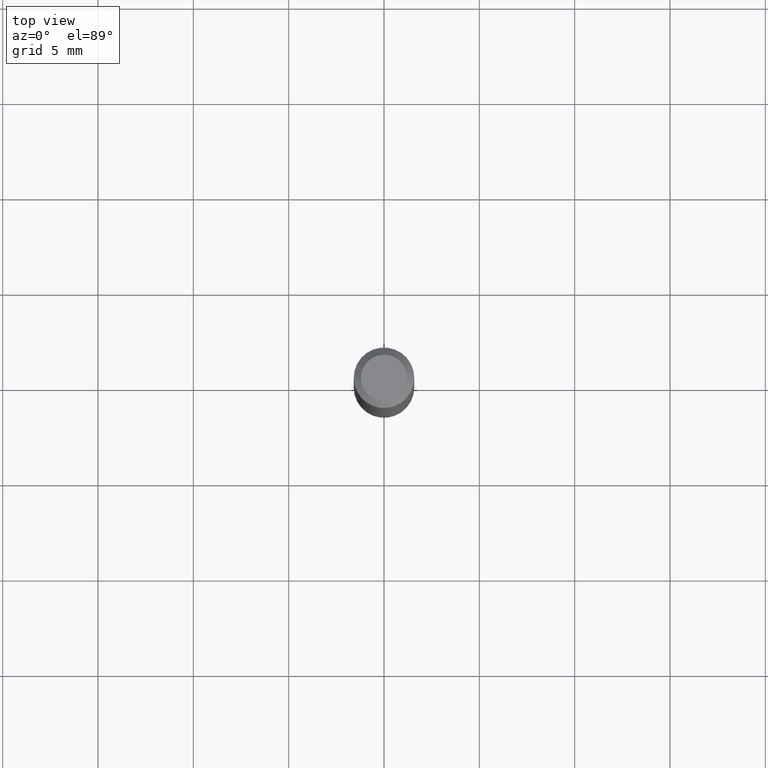
[diagram: clean part render]
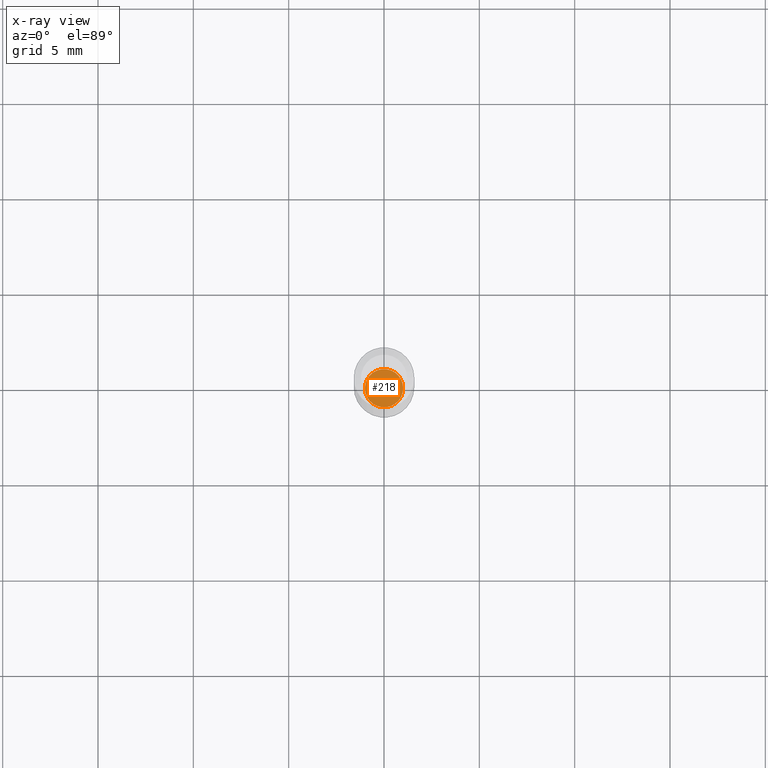
[diagram: x-ray — body ghosted, one internal face saturated and labeled with its STEP entity id]
A machine part, top view, then the same camera in x-ray: the body is ghosted and one INTERNAL B-rep face — a face not visible from any outside direction — is saturated and labeled: STEP entity #218.
In plain terms, the highlighted planar face has unit normal (-0, 0, 1).
Its self-contained STEP definition (entity closure, byte-faithful):
#70 = DIRECTION ( 'NONE',  ( 1.000000000000000000, -6.982962677686265922E-15, 4.876176775795935793E-29 ) ) ;
#82 = ORIENTED_EDGE ( 'NONE', *, *, #441, .F. ) ;
#104 = CARTESIAN_POINT ( 'NONE',  ( 3.081290695793272291E-29, -4.399266486942364120E-15, -1.260000000000000231 ) ) ;
#108 = CIRCLE ( 'NONE', #403, 0.03950000000000000039 ) ;
#144 = AXIS2_PLACEMENT_3D ( 'NONE', #104, #381, #212 ) ;
#212 = DIRECTION ( 'NONE',  ( 1.000000000000000000, -6.982962677686271444E-15, 0.000000000000000000 ) ) ;
#218 = ADVANCED_FACE ( 'NONE', ( #330 ), #434, .F. ) ;
#251 = VERTEX_POINT ( 'NONE', #266 ) ;
#265 = ORIENTED_EDGE ( 'NONE', *, *, #278, .F. ) ;
#266 = CARTESIAN_POINT ( 'NONE',  ( -0.03950000000000000039, -4.115952879143014280E-15, -1.260000000000000231 ) ) ;
#269 = DIRECTION ( 'NONE',  ( -2.445468806185136597E-29, 3.491481338843145583E-15, 1.000000000000000000 ) ) ;
#275 = CARTESIAN_POINT ( 'NONE',  ( 3.081290695793272291E-29, -4.399266486942364120E-15, -1.260000000000000231 ) ) ;
#278 = EDGE_CURVE ( 'NONE', #334, #251, #392, .T. ) ;
#300 = DIRECTION ( 'NONE',  ( -2.438088387897960049E-29, 3.491481338843145188E-15, 1.000000000000000000 ) ) ;
#315 = AXIS2_PLACEMENT_3D ( 'NONE', #275, #300, #70 ) ;
#330 = FACE_OUTER_BOUND ( 'NONE', #356, .T. ) ;
#334 = VERTEX_POINT ( 'NONE', #406 ) ;
#356 = EDGE_LOOP ( 'NONE', ( #265, #82 ) ) ;
#358 = DIRECTION ( 'NONE',  ( 1.000000000000000000, -6.982962677686271444E-15, 0.000000000000000000 ) ) ;
#381 = DIRECTION ( 'NONE',  ( -2.445468806185136597E-29, 3.491481338843145583E-15, 1.000000000000000000 ) ) ;
#392 = CIRCLE ( 'NONE', #144, 0.03950000000000000039 ) ;
#403 = AXIS2_PLACEMENT_3D ( 'NONE', #448, #269, #358 ) ;
#406 = CARTESIAN_POINT ( 'NONE',  ( 0.03950000000000000039, -4.675093512710971939E-15, -1.260000000000000231 ) ) ;
#434 = PLANE ( 'NONE',  #315 ) ;
#441 = EDGE_CURVE ( 'NONE', #251, #334, #108, .T. ) ;
#448 = CARTESIAN_POINT ( 'NONE',  ( 3.081290695793272291E-29, -4.399266486942364120E-15, -1.260000000000000231 ) ) ;